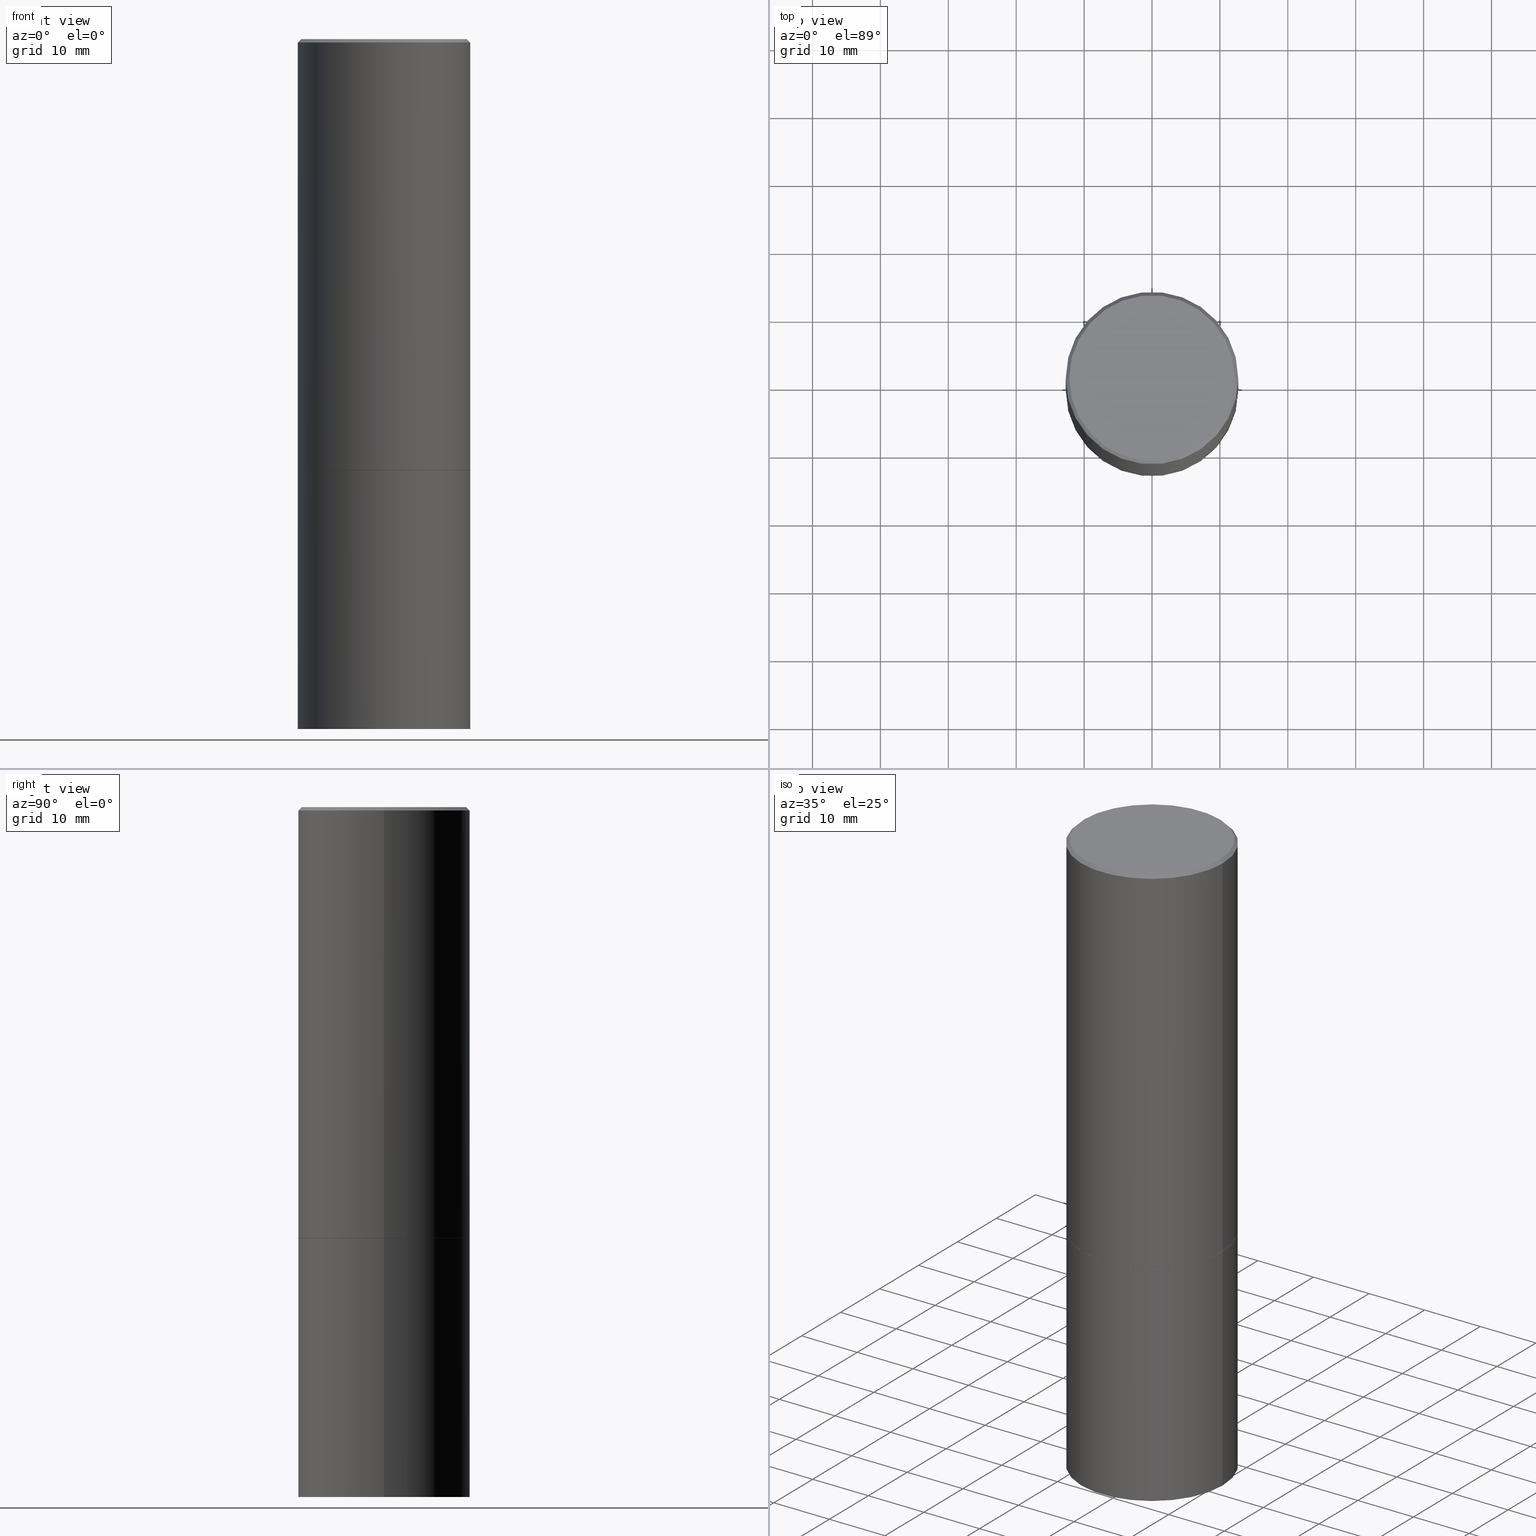
[diagram: canonical four-view strip — front | top / right | iso, engineering-drawing reading convention]
A machine part, canonical four-view strip (front | top / right | iso — engineering-drawing reading convention). The complete STEP part file that produces these views, byte-faithful:
ISO-10303-21;
HEADER;
FILE_DESCRIPTION (( 'STEP AP203' ),
    '1' );
FILE_NAME ('30175.STEP',
    '2023-03-21T20:24:28',
    ( '' ),
    ( '' ),
    'SwSTEP 2.0',
    'SolidWorks 2022',
    '' );
FILE_SCHEMA (( 'CONFIG_CONTROL_DESIGN' ));
ENDSEC;

DATA;
#1 = DIRECTION ( 'NONE',  ( -2.445468806185136597E-29, 3.491481338843145583E-15, 1.000000000000000000 ) ) ;
#2 = LINE ( 'NONE', #209, #60 ) ;
#3 = LENGTH_MEASURE_WITH_UNIT ( LENGTH_MEASURE( 0.02539999999999999897 ), #245 );
#4 = ADVANCED_FACE ( 'NONE', ( #66 ), #191, .F. ) ;
#5 = LINE ( 'NONE', #54, #322 ) ;
#6 = LINE ( 'NONE', #179, #336 ) ;
#7 = DATE_TIME_ROLE ( 'creation_date' ) ;
#8 = CONICAL_SURFACE ( 'NONE', #90, 0.4999999999999997780, 0.7853981633974468357 ) ;
#9 = AXIS2_PLACEMENT_3D ( 'NONE', #352, #41, #95 ) ;
#10 = CARTESIAN_POINT ( 'NONE',  ( -0.5000000000000001110, -8.448070674724403070E-16, -2.499000000000000110 ) ) ;
#11 = CIRCLE ( 'NONE', #39, 0.5000000000000000000 ) ;
#12 = EDGE_CURVE ( 'NONE', #305, #281, #324, .T. ) ;
#13 = ADVANCED_FACE ( 'NONE', ( #15 ), #382, .F. ) ;
#14 = DIRECTION ( 'NONE',  ( -2.438088387897960049E-29, 3.491481338843145188E-15, 1.000000000000000000 ) ) ;
#15 = FACE_OUTER_BOUND ( 'NONE', #202, .T. ) ;
#16 = DIRECTION ( 'NONE',  ( -2.445468806185136597E-29, 3.491481338843145583E-15, 1.000000000000000000 ) ) ;
#17 = PRODUCT_DEFINITION_SHAPE ( 'NONE', 'NONE',  #289 ) ;
#18 = CIRCLE ( 'NONE', #380, 0.5000000000000001110 ) ;
#19 = ORIENTED_EDGE ( 'NONE', *, *, #124, .T. ) ;
#20 = PERSON_AND_ORGANIZATION ( #142, #334 ) ;
#21 = EDGE_LOOP ( 'NONE', ( #288, #19, #86, #235 ) ) ;
#22 = ORIENTED_EDGE ( 'NONE', *, *, #94, .F. ) ;
#23 = PERSON_AND_ORGANIZATION ( #142, #334 ) ;
#24 = AXIS2_PLACEMENT_3D ( 'NONE', #390, #74, #307 ) ;
#25 = CARTESIAN_POINT ( 'NONE',  ( -0.4999999999999999445, 3.552713678800500535E-15, -2.459467545127452611E-29 ) ) ;
#26 = CYLINDRICAL_SURFACE ( 'NONE', #67, 0.5000000000000000000 ) ;
#27 = AXIS2_PLACEMENT_3D ( 'NONE', #49, #296, #76 ) ;
#28 = EDGE_CURVE ( 'NONE', #50, #108, #143, .T. ) ;
#29 = DIRECTION ( 'NONE',  ( 2.445468806185136597E-29, -3.491481338843145583E-15, -1.000000000000000000 ) ) ;
#30 = DIRECTION ( 'NONE',  ( -0.7071067811866441621, 7.493145998870704414E-15, 0.7071067811864508723 ) ) ;
#31 = PERSON_AND_ORGANIZATION ( #142, #334 ) ;
#32 = CALENDAR_DATE ( 2023, 21, 3 ) ;
#33 = DIRECTION ( 'NONE',  ( -0.7071067811865464625, 2.468850131082245622E-15, -0.7071067811865485719 ) ) ;
#34 = EDGE_LOOP ( 'NONE', ( #370, #131, #182 ) ) ;
#35 = CC_DESIGN_APPROVAL ( #210, ( #289 ) ) ;
#36 = AXIS2_PLACEMENT_3D ( 'NONE', #185, #92, #343 ) ;
#37 = CARTESIAN_POINT ( 'NONE',  ( -0.4999999999999997780, 3.421651712066268479E-15, -0.02000000000000011491 ) ) ;
#38 = DATE_AND_TIME ( #62, #116 ) ;
#39 = AXIS2_PLACEMENT_3D ( 'NONE', #242, #147, #385 ) ;
#40 = AXIS2_PLACEMENT_3D ( 'NONE', #228, #14, #126 ) ;
#41 = DIRECTION ( 'NONE',  ( -2.445468806185136597E-29, 3.491481338843145583E-15, 1.000000000000000000 ) ) ;
#42 = EDGE_CURVE ( 'NONE', #108, #313, #175, .T. ) ;
#43 = ORIENTED_EDGE ( 'NONE', *, *, #378, .F. ) ;
#44 = AXIS2_PLACEMENT_3D ( 'NONE', #351, #321, #240 ) ;
#45 = DIRECTION ( 'NONE',  ( -2.445468806185136597E-29, 3.491481338843145583E-15, 1.000000000000000000 ) ) ;
#46 = LINE ( 'NONE', #358, #383 ) ;
#47 = COORDINATED_UNIVERSAL_TIME_OFFSET ( 5, 0, .BEHIND. ) ;
#48 = VERTEX_POINT ( 'NONE', #56 ) ;
#49 = CARTESIAN_POINT ( 'NONE',  ( -1.043851414335219820E-46, 1.490343170380447200E-32, 4.268512490100411279E-18 ) ) ;
#50 = VERTEX_POINT ( 'NONE', #10 ) ;
#51 = DIRECTION ( 'NONE',  ( 0.7071067811865464625, -7.319954787623252890E-15, -0.7071067811865485719 ) ) ;
#52 = APPROVAL_DATE_TIME ( #77, #105 ) ;
#53 = APPROVAL_ROLE ( '' ) ;
#54 = CARTESIAN_POINT ( 'NONE',  ( 2.735601209579181363E-18, -1.387443496368411928E-14, -3.973796110358482903 ) ) ;
#55 = DIRECTION ( 'NONE',  ( -2.445468806185136597E-29, 3.491481338843145583E-15, 1.000000000000000000 ) ) ;
#56 = CARTESIAN_POINT ( 'NONE',  ( 0.4989999999999999991, -1.221320172327331228E-14, -2.500000000000000000 ) ) ;
#57 = ADVANCED_FACE ( 'NONE', ( #249 ), #207, .T. ) ;
#58 = PERSON_AND_ORGANIZATION ( #142, #334 ) ;
#59 = EDGE_LOOP ( 'NONE', ( #215, #283, #198, #63 ) ) ;
#60 = VECTOR ( 'NONE', #30, 39.37007874015748143 ) ;
#61 = ORIENTED_EDGE ( 'NONE', *, *, #234, .T. ) ;
#62 = CALENDAR_DATE ( 2023, 21, 3 ) ;
#63 = ORIENTED_EDGE ( 'NONE', *, *, #42, .F. ) ;
#64 = CARTESIAN_POINT ( 'NONE',  ( 9.781875224740546387E-29, -1.396592535537258233E-14, -4.000000000000000000 ) ) ;
#65 = ADVANCED_FACE ( 'NONE', ( #123 ), #284, .F. ) ;
#66 = FACE_OUTER_BOUND ( 'NONE', #389, .T. ) ;
#67 = AXIS2_PLACEMENT_3D ( 'NONE', #323, #104, #211 ) ;
#68 = VERTEX_POINT ( 'NONE', #373 ) ;
#69 = DIRECTION ( 'NONE',  ( -2.445468806185136597E-29, 3.491481338843145583E-15, 1.000000000000000000 ) ) ;
#70 = CC_DESIGN_PERSON_AND_ORGANIZATION_ASSIGNMENT ( #106, #237, ( #222 ) ) ;
#71 = ORIENTED_EDGE ( 'NONE', *, *, #265, .T. ) ;
#72 = CARTESIAN_POINT ( 'NONE',  ( 0.000000000000000000, 0.000000000000000000, 0.000000000000000000 ) ) ;
#73 = DIRECTION ( 'NONE',  ( -2.445468806185136877E-29, 3.491481338843145188E-15, 1.000000000000000000 ) ) ;
#74 = DIRECTION ( 'NONE',  ( -2.445468806185136597E-29, 3.491481338843145583E-15, 1.000000000000000000 ) ) ;
#75 = COORDINATED_UNIVERSAL_TIME_OFFSET ( 5, 0, .BEHIND. ) ;
#76 = DIRECTION ( 'NONE',  ( 1.000000000000000000, -6.982962677686267499E-15, 4.876234413615774643E-29 ) ) ;
#77 = DATE_AND_TIME ( #165, #130 ) ;
#78 = PERSON_AND_ORGANIZATION_ROLE ( 'design_owner' ) ;
#79 = FACE_OUTER_BOUND ( 'NONE', #368, .T. ) ;
#80 = AXIS2_PLACEMENT_3D ( 'NONE', #206, #300, #266 ) ;
#81 = EDGE_CURVE ( 'NONE', #68, #48, #152, .T. ) ;
#82 = APPLICATION_CONTEXT ( 'configuration controlled 3d designs of mechanical parts and assemblies' ) ;
#83 = DIRECTION ( 'NONE',  ( 0.9986295347545742773, -7.033825938271998700E-15, -0.05233595624293709697 ) ) ;
#84 = CIRCLE ( 'NONE', #232, 0.4989999999999999991 ) ;
#85 = DATE_AND_TIME ( #32, #257 ) ;
#86 = ORIENTED_EDGE ( 'NONE', *, *, #159, .T. ) ;
#87 = MANIFOLD_SOLID_BREP ( 'Body-Move/Copy2[2]', #347 ) ;
#88 = EDGE_CURVE ( 'NONE', #344, #164, #221, .T. ) ;
#89 = COORDINATED_UNIVERSAL_TIME_OFFSET ( 5, 0, .BEHIND. ) ;
#90 = AXIS2_PLACEMENT_3D ( 'NONE', #229, #295, #239 ) ;
#91 = APPROVAL_DATE_TIME ( #38, #99 ) ;
#92 = DIRECTION ( 'NONE',  ( -2.445468806185136597E-29, 3.491481338843145583E-15, 1.000000000000000000 ) ) ;
#93 = ORIENTED_EDGE ( 'NONE', *, *, #12, .F. ) ;
#94 = EDGE_CURVE ( 'NONE', #164, #305, #255, .T. ) ;
#95 = DIRECTION ( 'NONE',  ( 1.000000000000000000, -6.982962677686269077E-15, 0.000000000000000000 ) ) ;
#96 = DIRECTION ( 'NONE',  ( -2.445468806185136597E-29, 3.491481338843145583E-15, 1.000000000000000000 ) ) ;
#97 = AXIS2_PLACEMENT_3D ( 'NONE', #72, #362, #144 ) ;
#98 = CONICAL_SURFACE ( 'NONE', #118, 751.2258538476644389, 1.518436449235073482 ) ;
#99 = APPROVAL ( #275, 'UNSPECIFIED' ) ;
#100 = CARTESIAN_POINT ( 'NONE',  ( -0.4799999999999997047, 3.386736898677837619E-15, 4.268512490076848682E-18 ) ) ;
#101 = DIRECTION ( 'NONE',  ( -1.000000000000000000, 6.982962677686265922E-15, -4.876176775795935793E-29 ) ) ;
#102 = ORIENTED_EDGE ( 'NONE', *, *, #88, .F. ) ;
#103 = EDGE_LOOP ( 'NONE', ( #258, #355 ) ) ;
#104 = DIRECTION ( 'NONE',  ( -2.445468806185136597E-29, 3.491481338843145583E-15, 1.000000000000000000 ) ) ;
#105 = APPROVAL ( #155, 'UNSPECIFIED' ) ;
#106 = PERSON_AND_ORGANIZATION ( #142, #334 ) ;
#107 = DIRECTION ( 'NONE',  ( -2.445468806185136597E-29, 3.491481338843145583E-15, 1.000000000000000000 ) ) ;
#108 = VERTEX_POINT ( 'NONE', #37 ) ;
#109 = CARTESIAN_POINT ( 'NONE',  ( 0.5000000000000000000, -3.491481338843133355E-15, 2.438088387897967896E-29 ) ) ;
#110 = CARTESIAN_POINT ( 'NONE',  ( 6.111226546656657010E-29, -8.725211865769021935E-15, -2.499000000000000110 ) ) ;
#111 = DIRECTION ( 'NONE',  ( 1.000000000000000000, -6.982962677686267499E-15, 0.000000000000000000 ) ) ;
#112 = LINE ( 'NONE', #109, #340 ) ;
#113 = DIRECTION ( 'NONE',  ( 1.000000000000000000, -6.982962677686266711E-15, 0.000000000000000000 ) ) ;
#114 = DIRECTION ( 'NONE',  ( 1.000000000000000000, -6.982962677686266711E-15, 4.876176775795935793E-29 ) ) ;
#115 = AXIS2_PLACEMENT_3D ( 'NONE', #246, #225, #280 ) ;
#116 = LOCAL_TIME ( 16, 24, 28.00000000000000000, #89 ) ;
#117 = DIRECTION ( 'NONE',  ( -2.445468806185136877E-29, 3.491481338843145188E-15, 1.000000000000000000 ) ) ;
#118 = AXIS2_PLACEMENT_3D ( 'NONE', #268, #29, #213 ) ;
#119 = ORIENTED_EDGE ( 'NONE', *, *, #241, .F. ) ;
#120 = AXIS2_PLACEMENT_3D ( 'NONE', #110, #306, #270 ) ;
#121 = CLOSED_SHELL ( 'NONE', ( #308, #364, #220, #139, #4 ) ) ;
#122 = ORIENTED_EDGE ( 'NONE', *, *, #346, .T. ) ;
#123 = FACE_OUTER_BOUND ( 'NONE', #103, .T. ) ;
#124 = EDGE_CURVE ( 'NONE', #199, #313, #196, .T. ) ;
#125 = VERTEX_POINT ( 'NONE', #320 ) ;
#126 = DIRECTION ( 'NONE',  ( 1.000000000000000000, -6.982962677686265922E-15, 4.876176775795935793E-29 ) ) ;
#127 = FACE_OUTER_BOUND ( 'NONE', #386, .T. ) ;
#128 = ORIENTED_EDGE ( 'NONE', *, *, #12, .T. ) ;
#129 = APPROVAL_PERSON_ORGANIZATION ( #58, #105, #156 ) ;
#130 = LOCAL_TIME ( 16, 24, 28.00000000000000000, #47 ) ;
#131 = ORIENTED_EDGE ( 'NONE', *, *, #241, .T. ) ;
#132 = EDGE_LOOP ( 'NONE', ( #119, #339, #102 ) ) ;
#133 = ORIENTED_EDGE ( 'NONE', *, *, #183, .F. ) ;
#134 = FACE_OUTER_BOUND ( 'NONE', #348, .T. ) ;
#135 = PERSON_AND_ORGANIZATION_ROLE ( 'design_supplier' ) ;
#136 = APPLICATION_PROTOCOL_DEFINITION ( 'international standard', 'config_control_design', 1994, #293 ) ;
#137 = LINE ( 'NONE', #361, #161 ) ;
#138 = CARTESIAN_POINT ( 'NONE',  ( -0.5000000000000000000, -7.794600672439723496E-15, -2.500000000000000000 ) ) ;
#139 = ADVANCED_FACE ( 'NONE', ( #79 ), #26, .T. ) ;
#140 = ORIENTED_EDGE ( 'NONE', *, *, #42, .T. ) ;
#141 = DIRECTION ( 'NONE',  ( -0.9986295347545742773, 6.790662755453666100E-15, -0.05233595624293709697 ) ) ;
#142 = PERSON ( 'UNSPECIFIED', 'UNSPECIFIED', 'UNSPECIFIED', ('UNSPECIFIED'), ('UNSPECIFIED'), ('UNSPECIFIED') ) ;
#143 = LINE ( 'NONE', #25, #181 ) ;
#144 = DIRECTION ( 'NONE',  ( 1.000000000000000000, 0.000000000000000000, 0.000000000000000000 ) ) ;
#145 = EDGE_CURVE ( 'NONE', #384, #164, #46, .T. ) ;
#146 = CARTESIAN_POINT ( 'NONE',  ( 9.715884169906814161E-29, -1.387717056489360055E-14, -3.973796110358482903 ) ) ;
#147 = DIRECTION ( 'NONE',  ( -2.445468806185136597E-29, 3.491481338843145583E-15, 1.000000000000000000 ) ) ;
#148 = AXIS2_PLACEMENT_3D ( 'NONE', #169, #45, #163 ) ;
#149 = AXIS2_PLACEMENT_3D ( 'NONE', #379, #194, #317 ) ;
#150 = ORIENTED_EDGE ( 'NONE', *, *, #234, .F. ) ;
#151 = APPROVAL_PERSON_ORGANIZATION ( #208, #210, #53 ) ;
#152 = CIRCLE ( 'NONE', #36, 0.4989999999999999991 ) ;
#153 = AXIS2_PLACEMENT_3D ( 'NONE', #387, #55, #381 ) ;
#154 = EDGE_CURVE ( 'NONE', #50, #125, #18, .T. ) ;
#155 = APPROVAL_STATUS ( 'not_yet_approved' ) ;
#156 = APPROVAL_ROLE ( '' ) ;
#157 = SHAPE_DEFINITION_REPRESENTATION ( #17, #287 ) ;
#158 = CARTESIAN_POINT ( 'NONE',  ( 0.4999999999999999445, -3.491481338843132961E-15, 2.438088387897967616E-29 ) ) ;
#159 = EDGE_CURVE ( 'NONE', #313, #108, #365, .T. ) ;
#160 = EDGE_CURVE ( 'NONE', #344, #281, #112, .T. ) ;
#161 = VECTOR ( 'NONE', #189, 39.37007874015748143 ) ;
#162 = ORIENTED_EDGE ( 'NONE', *, *, #333, .F. ) ;
#163 = DIRECTION ( 'NONE',  ( 1.000000000000000000, -6.982962677686266711E-15, 0.000000000000000000 ) ) ;
#164 = VERTEX_POINT ( 'NONE', #200 ) ;
#165 = CALENDAR_DATE ( 2023, 21, 3 ) ;
#166 = FACE_OUTER_BOUND ( 'NONE', #34, .T. ) ;
#167 = ORIENTED_EDGE ( 'NONE', *, *, #81, .T. ) ;
#168 = CC_DESIGN_DATE_AND_TIME_ASSIGNMENT ( #85, #7, ( #289 ) ) ;
#169 = CARTESIAN_POINT ( 'NONE',  ( 6.113672015462842613E-29, -8.728703347107864943E-15, -2.500000000000000000 ) ) ;
#170 = PRODUCT ( '30175', '30175', '', ( #261 ) ) ;
#171 = DATE_TIME_ROLE ( 'classification_date' ) ;
#172 =( NAMED_UNIT ( * ) SI_UNIT ( $, .STERADIAN. ) SOLID_ANGLE_UNIT ( ) );
#173 = CARTESIAN_POINT ( 'NONE',  ( 4.890937612370302060E-31, -6.982962677686331052E-17, -0.02000000000000011491 ) ) ;
#174 = CARTESIAN_POINT ( 'NONE',  ( 6.113672015462842613E-29, -8.728703347107864943E-15, -2.500000000000000000 ) ) ;
#175 = CIRCLE ( 'NONE', #217, 0.4999999999999997780 ) ;
#176 = VECTOR ( 'NONE', #188, 39.37007874015748143 ) ;
#177 = APPLICATION_PROTOCOL_DEFINITION ( 'international standard', 'config_control_design', 1994, #82 ) ;
#178 = PERSON_AND_ORGANIZATION_ROLE ( 'creator' ) ;
#179 = CARTESIAN_POINT ( 'NONE',  ( -0.4999999999999997780, 3.421651712066268479E-15, -0.02000000000000011491 ) ) ;
#180 = ADVANCED_FACE ( 'NONE', ( #326 ), #8, .T. ) ;
#181 = VECTOR ( 'NONE', #117, 39.37007874015748143 ) ;
#182 = ORIENTED_EDGE ( 'NONE', *, *, #248, .F. ) ;
#183 = EDGE_CURVE ( 'NONE', #48, #125, #137, .T. ) ;
#184 = AXIS2_PLACEMENT_3D ( 'NONE', #64, #96, #350 ) ;
#185 = CARTESIAN_POINT ( 'NONE',  ( 6.113672015462842613E-29, -8.728703347107864943E-15, -2.500000000000000000 ) ) ;
#186 = CC_DESIGN_PERSON_AND_ORGANIZATION_ASSIGNMENT ( #360, #292, ( #311 ) ) ;
#187 = ORIENTED_EDGE ( 'NONE', *, *, #183, .T. ) ;
#188 = DIRECTION ( 'NONE',  ( -2.445468806185136877E-29, 3.491481338843145188E-15, 1.000000000000000000 ) ) ;
#189 = DIRECTION ( 'NONE',  ( 0.7071067811866441621, -2.468850131083269169E-15, 0.7071067811864508723 ) ) ;
#190 = CIRCLE ( 'NONE', #27, 0.4799999999999997047 ) ;
#191 = PLANE ( 'NONE',  #149 ) ;
#192 = CIRCLE ( 'NONE', #349, 0.5000000000000000000 ) ;
#193 = FACE_OUTER_BOUND ( 'NONE', #132, .T. ) ;
#194 = DIRECTION ( 'NONE',  ( 2.438088387897960049E-29, -3.491481338843145188E-15, -1.000000000000000000 ) ) ;
#195 = EDGE_LOOP ( 'NONE', ( #327, #260, #43, #236 ) ) ;
#196 = LINE ( 'NONE', #297, #264 ) ;
#197 = DIMENSIONAL_EXPONENTS ( 1.000000000000000000, 0.000000000000000000, 0.000000000000000000, 0.000000000000000000, 0.000000000000000000, 0.000000000000000000, 0.000000000000000000 ) ;
#198 = ORIENTED_EDGE ( 'NONE', *, *, #205, .T. ) ;
#199 = VERTEX_POINT ( 'NONE', #286 ) ;
#200 = CARTESIAN_POINT ( 'NONE',  ( -0.4999999999999993894, -1.047444401652945213E-14, -4.000000000000000000 ) ) ;
#201 = CARTESIAN_POINT ( 'NONE',  ( 0.4999999999999997780, -3.500078625662627896E-15, -0.02000000000000011491 ) ) ;
#202 = EDGE_LOOP ( 'NONE', ( #357, #71 ) ) ;
#203 = CALENDAR_DATE ( 2023, 21, 3 ) ;
#204 =( CONVERSION_BASED_UNIT ( 'INCH', #3 ) LENGTH_UNIT ( ) NAMED_UNIT ( #197 ) );
#205 = EDGE_CURVE ( 'NONE', #125, #313, #315, .T. ) ;
#206 = CARTESIAN_POINT ( 'NONE',  ( 4.890937612370302060E-31, -6.982962677686331052E-17, -0.02000000000000011491 ) ) ;
#207 = CYLINDRICAL_SURFACE ( 'NONE', #278, 0.4999999999999999445 ) ;
#208 = PERSON_AND_ORGANIZATION ( #142, #334 ) ;
#209 = CARTESIAN_POINT ( 'NONE',  ( -0.4989999999999999991, -5.183095095664965021E-15, -2.500000000000000000 ) ) ;
#210 = APPROVAL ( #332, 'UNSPECIFIED' ) ;
#211 = DIRECTION ( 'NONE',  ( 1.000000000000000000, -6.982962677686266711E-15, 4.876176775795935793E-29 ) ) ;
#212 = LOCAL_TIME ( 16, 24, 28.00000000000000000, #226 ) ;
#213 = DIRECTION ( 'NONE',  ( -1.000000000000000000, 6.982962677686265922E-15, 0.000000000000000000 ) ) ;
#214 = LOCAL_TIME ( 16, 24, 28.00000000000000000, #75 ) ;
#215 = ORIENTED_EDGE ( 'NONE', *, *, #28, .F. ) ;
#216 = DIRECTION ( 'NONE',  ( -1.000000000000000000, 6.982962677686266711E-15, 0.000000000000000000 ) ) ;
#217 = AXIS2_PLACEMENT_3D ( 'NONE', #274, #247, #113 ) ;
#218 = DIRECTION ( 'NONE',  ( -2.445468806185136597E-29, 3.491481338843145583E-15, 1.000000000000000000 ) ) ;
#219 = CALENDAR_DATE ( 2023, 21, 3 ) ;
#220 = ADVANCED_FACE ( 'NONE', ( #193 ), #279, .F. ) ;
#221 = CIRCLE ( 'NONE', #184, 0.5000000000000000000 ) ;
#222 = SECURITY_CLASSIFICATION ( '', '', #388 ) ;
#223 = APPROVAL_DATE_TIME ( #310, #210 ) ;
#224 = ADVANCED_FACE ( 'NONE', ( #330 ), #244, .T. ) ;
#225 = DIRECTION ( 'NONE',  ( 2.445468806185136597E-29, -3.491481338843145583E-15, -1.000000000000000000 ) ) ;
#226 = COORDINATED_UNIVERSAL_TIME_OFFSET ( 5, 0, .BEHIND. ) ;
#227 = ORIENTED_EDGE ( 'NONE', *, *, #124, .F. ) ;
#228 = CARTESIAN_POINT ( 'NONE',  ( 6.113672015462842613E-29, -8.728703347107864943E-15, -2.500000000000000000 ) ) ;
#229 = CARTESIAN_POINT ( 'NONE',  ( 4.890937612370302060E-31, -6.982962677686331052E-17, -0.02000000000000011491 ) ) ;
#230 = VECTOR ( 'NONE', #253, 39.37007874015748143 ) ;
#231 = DIRECTION ( 'NONE',  ( 2.438088387897960049E-29, -3.491481338843145188E-15, -1.000000000000000000 ) ) ;
#232 = AXIS2_PLACEMENT_3D ( 'NONE', #233, #69, #273 ) ;
#233 = CARTESIAN_POINT ( 'NONE',  ( 6.113672015462842613E-29, -8.728703347107864943E-15, -2.500000000000000000 ) ) ;
#234 = EDGE_CURVE ( 'NONE', #68, #50, #2, .T. ) ;
#235 = ORIENTED_EDGE ( 'NONE', *, *, #346, .F. ) ;
#236 = ORIENTED_EDGE ( 'NONE', *, *, #160, .F. ) ;
#237 = PERSON_AND_ORGANIZATION_ROLE ( 'classification_officer' ) ;
#238 = FACE_OUTER_BOUND ( 'NONE', #59, .T. ) ;
#239 = DIRECTION ( 'NONE',  ( -1.000000000000000000, 6.982962677686266711E-15, 0.000000000000000000 ) ) ;
#240 = DIRECTION ( 'NONE',  ( 1.000000000000000000, -6.982962677686267499E-15, 4.876234413615774643E-29 ) ) ;
#241 = EDGE_CURVE ( 'NONE', #384, #344, #5, .T. ) ;
#242 = CARTESIAN_POINT ( 'NONE',  ( 9.781875224740546387E-29, -1.396592535537258233E-14, -4.000000000000000000 ) ) ;
#243 = COORDINATED_UNIVERSAL_TIME_OFFSET ( 5, 0, .BEHIND. ) ;
#244 = CONICAL_SURFACE ( 'NONE', #277, 0.4999999999999997780, 0.7853981633974468357 ) ;
#245 =( LENGTH_UNIT ( ) NAMED_UNIT ( * ) SI_UNIT ( $, .METRE. ) );
#246 = CARTESIAN_POINT ( 'NONE',  ( 1.059960938861292495E-27, -1.513343301937292314E-13, -43.34387485051595945 ) ) ;
#247 = DIRECTION ( 'NONE',  ( -2.445468806185136597E-29, 3.491481338843145583E-15, 1.000000000000000000 ) ) ;
#248 = EDGE_CURVE ( 'NONE', #164, #344, #11, .T. ) ;
#249 = FACE_OUTER_BOUND ( 'NONE', #353, .T. ) ;
#250 = AXIS2_PLACEMENT_3D ( 'NONE', #335, #218, #114 ) ;
#251 = DIRECTION ( 'NONE',  ( 1.000000000000000000, -6.982962677686266711E-15, 4.876176775795935793E-29 ) ) ;
#252 = ORIENTED_EDGE ( 'NONE', *, *, #205, .F. ) ;
#253 = DIRECTION ( 'NONE',  ( -2.445468806185136877E-29, 3.491481338843145188E-15, 1.000000000000000000 ) ) ;
#254 = CARTESIAN_POINT ( 'NONE',  ( 3.351822085289405970E-15, 0.4799999999999997047, -1.673776786399658688E-15 ) ) ;
#255 = LINE ( 'NONE', #312, #176 ) ;
#256 = CARTESIAN_POINT ( 'NONE',  ( 0.5000000000000000000, -1.222018468595099830E-14, -2.500000000000000000 ) ) ;
#257 = LOCAL_TIME ( 16, 24, 28.00000000000000000, #243 ) ;
#258 = ORIENTED_EDGE ( 'NONE', *, *, #303, .F. ) ;
#259 = PRODUCT_RELATED_PRODUCT_CATEGORY ( 'detail', '', ( #170 ) ) ;
#260 = ORIENTED_EDGE ( 'NONE', *, *, #94, .T. ) ;
#261 = MECHANICAL_CONTEXT ( 'NONE', #293, 'mechanical' ) ;
#262 = ORIENTED_EDGE ( 'NONE', *, *, #154, .F. ) ;
#263 = FACE_OUTER_BOUND ( 'NONE', #195, .T. ) ;
#264 = VECTOR ( 'NONE', #51, 39.37007874015748143 ) ;
#265 = EDGE_CURVE ( 'NONE', #199, #290, #374, .T. ) ;
#266 = DIRECTION ( 'NONE',  ( 1.000000000000000000, -6.982962677686266711E-15, 0.000000000000000000 ) ) ;
#267 = APPROVAL_ROLE ( '' ) ;
#268 = CARTESIAN_POINT ( 'NONE',  ( 1.059960938861292495E-27, -1.513343301937292314E-13, -43.34387485051595945 ) ) ;
#269 = ADVANCED_FACE ( 'NONE', ( #127 ), #302, .T. ) ;
#270 = DIRECTION ( 'NONE',  ( 1.000000000000000000, -6.982962677686267499E-15, 0.000000000000000000 ) ) ;
#271 = CIRCLE ( 'NONE', #120, 0.5000000000000001110 ) ;
#272 = CYLINDRICAL_SURFACE ( 'NONE', #250, 0.4999999999999999445 ) ;
#273 = DIRECTION ( 'NONE',  ( 1.000000000000000000, -6.982962677686266711E-15, 0.000000000000000000 ) ) ;
#274 = CARTESIAN_POINT ( 'NONE',  ( 4.890937612370302060E-31, -6.982962677686331052E-17, -0.02000000000000011491 ) ) ;
#275 = APPROVAL_STATUS ( 'not_yet_approved' ) ;
#276 = CC_DESIGN_PERSON_AND_ORGANIZATION_ASSIGNMENT ( #23, #78, ( #170 ) ) ;
#277 = AXIS2_PLACEMENT_3D ( 'NONE', #173, #363, #216 ) ;
#278 = AXIS2_PLACEMENT_3D ( 'NONE', #331, #16, #251 ) ;
#279 = CONICAL_SURFACE ( 'NONE', #115, 751.2258538476644389, 1.518436449235073482 ) ;
#280 = DIRECTION ( 'NONE',  ( -1.000000000000000000, 6.982962677686265922E-15, 0.000000000000000000 ) ) ;
#281 = VERTEX_POINT ( 'NONE', #256 ) ;
#282 = CC_DESIGN_PERSON_AND_ORGANIZATION_ASSIGNMENT ( #31, #178, ( #289 ) ) ;
#283 = ORIENTED_EDGE ( 'NONE', *, *, #154, .T. ) ;
#284 = PLANE ( 'NONE',  #40 ) ;
#285 = ADVANCED_FACE ( 'NONE', ( #134 ), #314, .T. ) ;
#286 = CARTESIAN_POINT ( 'NONE',  ( 0.4799999999999997047, -3.396558832296480127E-15, 4.268512490124008543E-18 ) ) ;
#287 = ADVANCED_BREP_SHAPE_REPRESENTATION ( '30175', ( #366, #87, #97 ), #345 ) ;
#288 = ORIENTED_EDGE ( 'NONE', *, *, #265, .F. ) ;
#289 = PRODUCT_DEFINITION ( 'UNKNOWN', '', #311, #337 ) ;
#290 = VERTEX_POINT ( 'NONE', #100 ) ;
#291 = ORIENTED_EDGE ( 'NONE', *, *, #160, .T. ) ;
#292 = PERSON_AND_ORGANIZATION_ROLE ( 'creator' ) ;
#293 = APPLICATION_CONTEXT ( 'configuration controlled 3d designs of mechanical parts and assemblies' ) ;
#294 = ORIENTED_EDGE ( 'NONE', *, *, #28, .T. ) ;
#295 = DIRECTION ( 'NONE',  ( 2.445468806185136597E-29, -3.491481338843145583E-15, -1.000000000000000000 ) ) ;
#296 = DIRECTION ( 'NONE',  ( -2.445468806185136597E-29, 3.491481338843145583E-15, 1.000000000000000000 ) ) ;
#297 = CARTESIAN_POINT ( 'NONE',  ( 0.4999999999999997780, -3.500078625662627896E-15, -0.02000000000000011491 ) ) ;
#298 = PERSON_AND_ORGANIZATION ( #142, #334 ) ;
#299 = ORIENTED_EDGE ( 'NONE', *, *, #325, .F. ) ;
#300 = DIRECTION ( 'NONE',  ( -2.445468806185136597E-29, 3.491481338843145583E-15, 1.000000000000000000 ) ) ;
#301 = DIRECTION ( 'NONE',  ( 1.000000000000000000, -6.982962677686269077E-15, 0.000000000000000000 ) ) ;
#302 = CONICAL_SURFACE ( 'NONE', #148, 0.4989999999999999991, 0.7853981633975849475 ) ;
#303 = EDGE_CURVE ( 'NONE', #48, #68, #84, .T. ) ;
#304 = CARTESIAN_POINT ( 'NONE',  ( 0.4999999999999993894, -1.739617435425834338E-14, -4.000000000000000000 ) ) ;
#305 = VERTEX_POINT ( 'NONE', #138 ) ;
#306 = DIRECTION ( 'NONE',  ( -2.445468806185136597E-29, 3.491481338843145583E-15, 1.000000000000000000 ) ) ;
#307 = DIRECTION ( 'NONE',  ( 1.000000000000000000, -6.982962677686266711E-15, 4.876176775795935793E-29 ) ) ;
#308 = ADVANCED_FACE ( 'NONE', ( #263 ), #356, .T. ) ;
#309 = ORIENTED_EDGE ( 'NONE', *, *, #159, .F. ) ;
#310 = DATE_AND_TIME ( #219, #212 ) ;
#311 = PRODUCT_DEFINITION_FORMATION_WITH_SPECIFIED_SOURCE ( 'ANY', '', #170, .NOT_KNOWN. ) ;
#312 = CARTESIAN_POINT ( 'NONE',  ( -0.5000000000000000000, 3.552713678800500929E-15, -2.459467545127452891E-29 ) ) ;
#313 = VERTEX_POINT ( 'NONE', #201 ) ;
#314 = CONICAL_SURFACE ( 'NONE', #153, 0.4989999999999999991, 0.7853981633975849475 ) ;
#315 = LINE ( 'NONE', #158, #230 ) ;
#316 = APPROVAL_PERSON_ORGANIZATION ( #298, #99, #267 ) ;
#317 = DIRECTION ( 'NONE',  ( -1.000000000000000000, 6.982962677686265922E-15, -4.876176775795935793E-29 ) ) ;
#318 = CC_DESIGN_DATE_AND_TIME_ASSIGNMENT ( #329, #171, ( #222 ) ) ;
#319 = ORIENTED_EDGE ( 'NONE', *, *, #248, .T. ) ;
#320 = CARTESIAN_POINT ( 'NONE',  ( 0.5000000000000001110, -1.221669320461215687E-14, -2.499000000000000110 ) ) ;
#321 = DIRECTION ( 'NONE',  ( -2.445468806185136597E-29, 3.491481338843145583E-15, 1.000000000000000000 ) ) ;
#322 = VECTOR ( 'NONE', #83, 39.37007874015748143 ) ;
#323 = CARTESIAN_POINT ( 'NONE',  ( 0.000000000000000000, 0.000000000000000000, 0.000000000000000000 ) ) ;
#324 = CIRCLE ( 'NONE', #9, 0.5000000000000000000 ) ;
#325 = EDGE_CURVE ( 'NONE', #290, #199, #190, .T. ) ;
#326 = FACE_OUTER_BOUND ( 'NONE', #21, .T. ) ;
#327 = ORIENTED_EDGE ( 'NONE', *, *, #88, .T. ) ;
#328 = CARTESIAN_POINT ( 'NONE',  ( 6.111226546656657010E-29, -8.725211865769021935E-15, -2.499000000000000110 ) ) ;
#329 = DATE_AND_TIME ( #203, #214 ) ;
#330 = FACE_OUTER_BOUND ( 'NONE', #338, .T. ) ;
#331 = CARTESIAN_POINT ( 'NONE',  ( 0.000000000000000000, 0.000000000000000000, 0.000000000000000000 ) ) ;
#332 = APPROVAL_STATUS ( 'not_yet_approved' ) ;
#333 = EDGE_CURVE ( 'NONE', #125, #50, #271, .T. ) ;
#334 = ORGANIZATION ( 'UNSPECIFIED', 'UNSPECIFIED', '' ) ;
#335 = CARTESIAN_POINT ( 'NONE',  ( 0.000000000000000000, 0.000000000000000000, 0.000000000000000000 ) ) ;
#336 = VECTOR ( 'NONE', #33, 39.37007874015748143 ) ;
#337 = DESIGN_CONTEXT ( 'detailed design', #82, 'design' ) ;
#338 = EDGE_LOOP ( 'NONE', ( #227, #299, #122, #140 ) ) ;
#339 = ORIENTED_EDGE ( 'NONE', *, *, #145, .T. ) ;
#340 = VECTOR ( 'NONE', #73, 39.37007874015748143 ) ;
#341 = CC_DESIGN_APPROVAL ( #105, ( #311 ) ) ;
#342 = ORIENTED_EDGE ( 'NONE', *, *, #333, .T. ) ;
#343 = DIRECTION ( 'NONE',  ( 1.000000000000000000, -6.982962677686266711E-15, 0.000000000000000000 ) ) ;
#344 = VERTEX_POINT ( 'NONE', #304 ) ;
#345 =( GEOMETRIC_REPRESENTATION_CONTEXT ( 3 ) GLOBAL_UNCERTAINTY_ASSIGNED_CONTEXT ( ( #376 ) ) GLOBAL_UNIT_ASSIGNED_CONTEXT ( ( #204, #369, #172 ) ) REPRESENTATION_CONTEXT ( 'NONE', 'WORKASPACE' ) );
#346 = EDGE_CURVE ( 'NONE', #290, #108, #6, .T. ) ;
#347 = CLOSED_SHELL ( 'NONE', ( #285, #57, #180, #224, #371, #269, #65, #13 ) ) ;
#348 = EDGE_LOOP ( 'NONE', ( #354, #61, #162, #133 ) ) ;
#349 = AXIS2_PLACEMENT_3D ( 'NONE', #174, #107, #301 ) ;
#350 = DIRECTION ( 'NONE',  ( 1.000000000000000000, -6.982962677686266711E-15, 0.000000000000000000 ) ) ;
#351 = CARTESIAN_POINT ( 'NONE',  ( -1.043851414335219820E-46, 1.490343170380447200E-32, 4.268512490100411279E-18 ) ) ;
#352 = CARTESIAN_POINT ( 'NONE',  ( 6.113672015462842613E-29, -8.728703347107864943E-15, -2.500000000000000000 ) ) ;
#353 = EDGE_LOOP ( 'NONE', ( #342, #294, #309, #252 ) ) ;
#354 = ORIENTED_EDGE ( 'NONE', *, *, #303, .T. ) ;
#355 = ORIENTED_EDGE ( 'NONE', *, *, #81, .F. ) ;
#356 = CYLINDRICAL_SURFACE ( 'NONE', #24, 0.5000000000000000000 ) ;
#357 = ORIENTED_EDGE ( 'NONE', *, *, #325, .T. ) ;
#358 = CARTESIAN_POINT ( 'NONE',  ( -2.735601209384825372E-18, -1.387443496368411928E-14, -3.973796110358482903 ) ) ;
#359 = AXIS2_PLACEMENT_3D ( 'NONE', #254, #231, #101 ) ;
#360 = PERSON_AND_ORGANIZATION ( #142, #334 ) ;
#361 = CARTESIAN_POINT ( 'NONE',  ( 0.4989999999999999991, -1.221320172327331228E-14, -2.500000000000000000 ) ) ;
#362 = DIRECTION ( 'NONE',  ( 0.000000000000000000, 0.000000000000000000, 1.000000000000000000 ) ) ;
#363 = DIRECTION ( 'NONE',  ( 2.445468806185136597E-29, -3.491481338843145583E-15, -1.000000000000000000 ) ) ;
#364 = ADVANCED_FACE ( 'NONE', ( #166 ), #98, .F. ) ;
#365 = CIRCLE ( 'NONE', #80, 0.4999999999999997780 ) ;
#366 = MANIFOLD_SOLID_BREP ( 'Body-Move/Copy2[1]', #121 ) ;
#367 = CC_DESIGN_APPROVAL ( #99, ( #222 ) ) ;
#368 = EDGE_LOOP ( 'NONE', ( #22, #319, #291, #93 ) ) ;
#369 =( NAMED_UNIT ( * ) PLANE_ANGLE_UNIT ( ) SI_UNIT ( $, .RADIAN. ) );
#370 = ORIENTED_EDGE ( 'NONE', *, *, #145, .F. ) ;
#371 = ADVANCED_FACE ( 'NONE', ( #238 ), #272, .T. ) ;
#372 = CC_DESIGN_PERSON_AND_ORGANIZATION_ASSIGNMENT ( #20, #135, ( #311 ) ) ;
#373 = CARTESIAN_POINT ( 'NONE',  ( -0.4989999999999999991, -5.177796641316743408E-15, -2.500000000000000000 ) ) ;
#374 = CIRCLE ( 'NONE', #44, 0.4799999999999997047 ) ;
#375 = CC_DESIGN_SECURITY_CLASSIFICATION ( #222, ( #311 ) ) ;
#376 = UNCERTAINTY_MEASURE_WITH_UNIT (LENGTH_MEASURE( 1.000000000000000082E-05 ), #204, 'distance_accuracy_value', 'NONE');
#377 = ORIENTED_EDGE ( 'NONE', *, *, #378, .T. ) ;
#378 = EDGE_CURVE ( 'NONE', #281, #305, #192, .T. ) ;
#379 = CARTESIAN_POINT ( 'NONE',  ( 3.491481338843194098E-15, 0.4999999999999912292, -2.500000000000001776 ) ) ;
#380 = AXIS2_PLACEMENT_3D ( 'NONE', #328, #1, #111 ) ;
#381 = DIRECTION ( 'NONE',  ( 1.000000000000000000, -6.982962677686266711E-15, 0.000000000000000000 ) ) ;
#382 = PLANE ( 'NONE',  #359 ) ;
#383 = VECTOR ( 'NONE', #141, 39.37007874015748143 ) ;
#384 = VERTEX_POINT ( 'NONE', #146 ) ;
#385 = DIRECTION ( 'NONE',  ( 1.000000000000000000, -6.982962677686266711E-15, 0.000000000000000000 ) ) ;
#386 = EDGE_LOOP ( 'NONE', ( #150, #167, #187, #262 ) ) ;
#387 = CARTESIAN_POINT ( 'NONE',  ( 6.113672015462842613E-29, -8.728703347107864943E-15, -2.500000000000000000 ) ) ;
#388 = SECURITY_CLASSIFICATION_LEVEL ( 'unclassified' ) ;
#389 = EDGE_LOOP ( 'NONE', ( #377, #128 ) ) ;
#390 = CARTESIAN_POINT ( 'NONE',  ( 0.000000000000000000, 0.000000000000000000, 0.000000000000000000 ) ) ;
ENDSEC;
END-ISO-10303-21;
